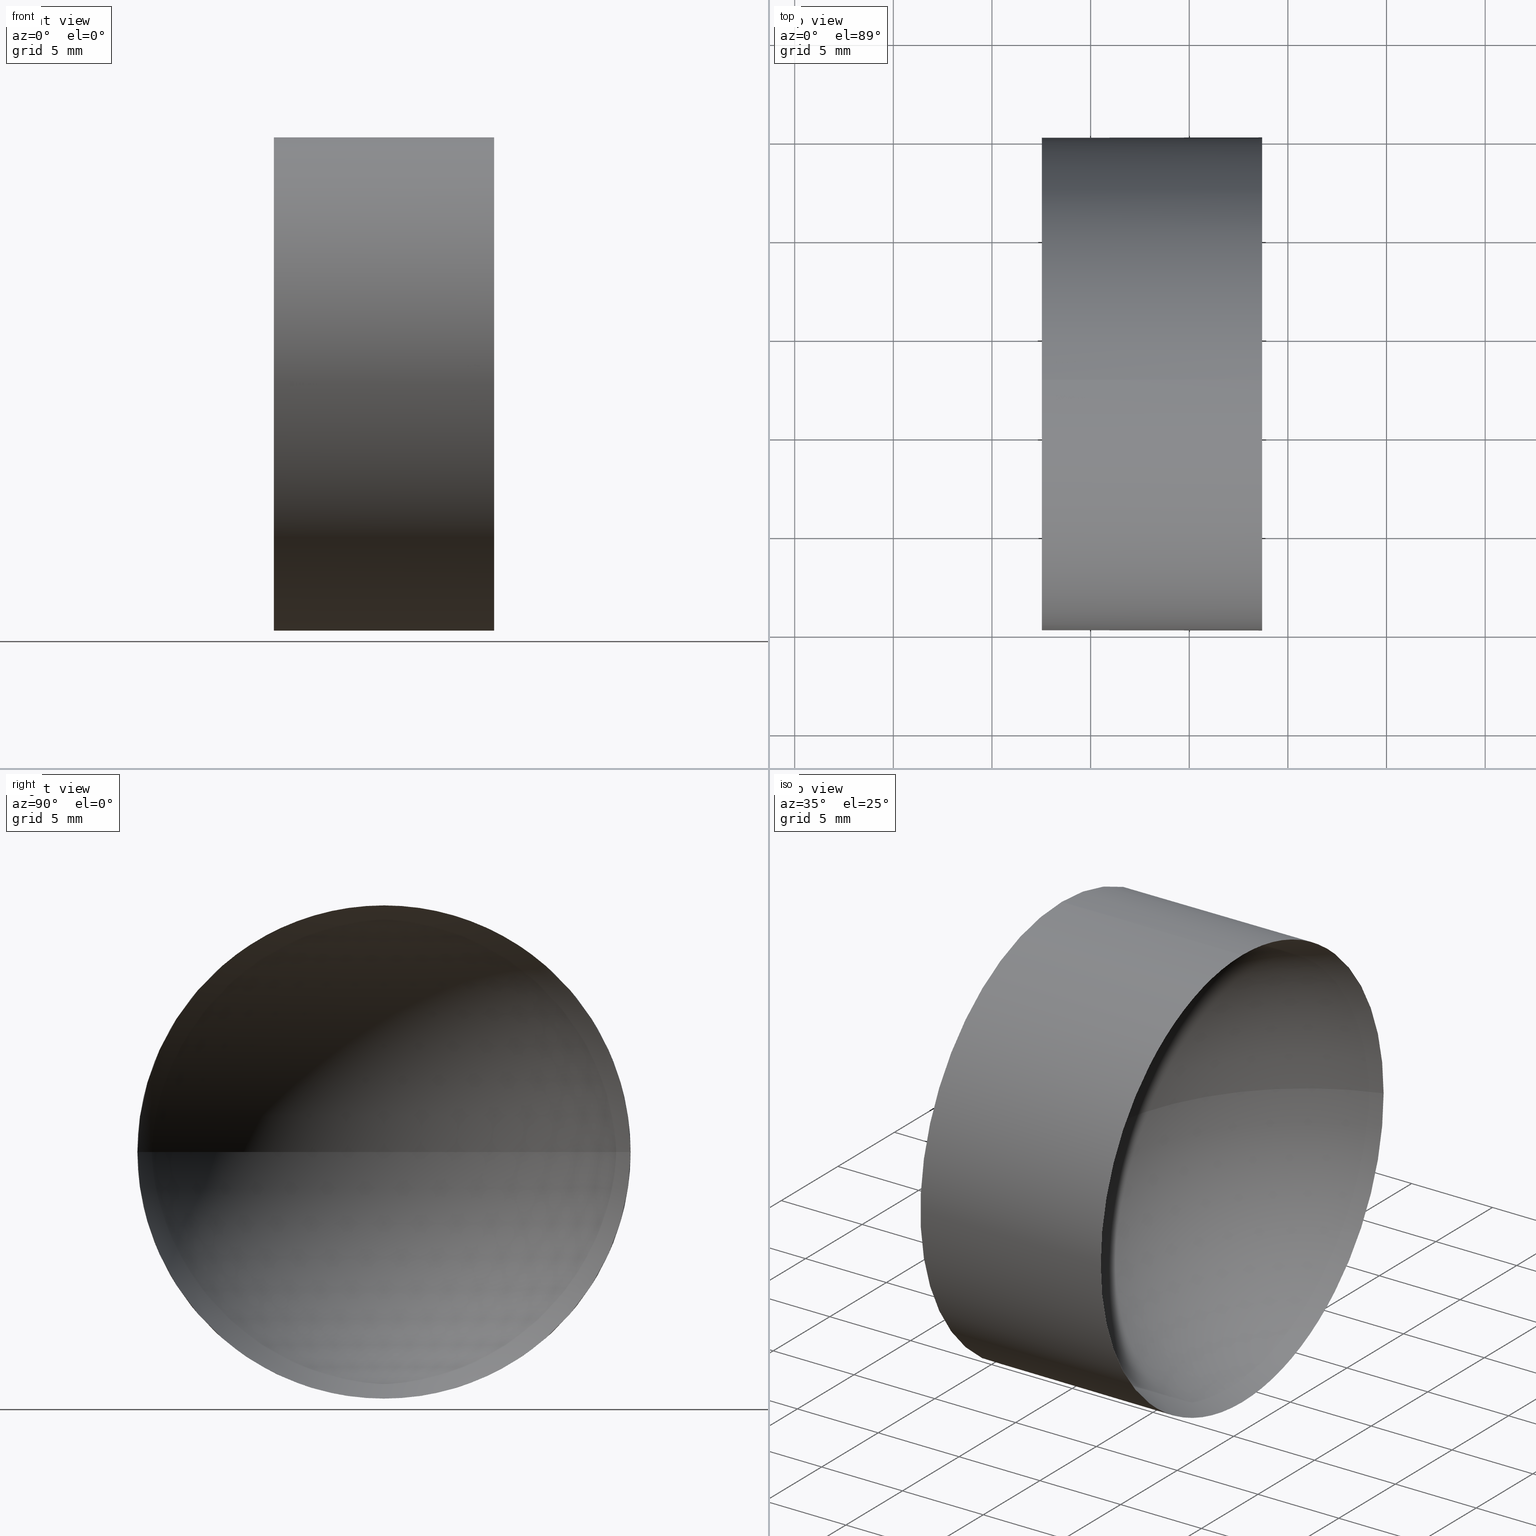
[diagram: canonical four-view strip — front | top / right | iso, engineering-drawing reading convention]
A machine part, canonical four-view strip (front | top / right | iso — engineering-drawing reading convention). The complete STEP part file that produces these views, byte-faithful:
ISO-10303-21;
HEADER;
FILE_DESCRIPTION (( 'STEP AP214' ),
    '1' );
FILE_NAME ('120029.STEP',
    '2019-06-17T02:26:49',
    ( '' ),
    ( '' ),
    'SwSTEP 2.0',
    'SolidWorks 2016',
    '' );
FILE_SCHEMA (( 'AUTOMOTIVE_DESIGN' ));
ENDSEC;

DATA;
#1 = AXIS2_PLACEMENT_3D ( 'NONE', #9, #139, #171 ) ;
#2 =( NAMED_UNIT ( * ) SI_UNIT ( $, .STERADIAN. ) SOLID_ANGLE_UNIT ( ) );
#3 = VERTEX_POINT ( 'NONE', #167 ) ;
#4 = FILL_AREA_STYLE ('',( #11 ) ) ;
#5 = SURFACE_SIDE_STYLE ('',( #184 ) ) ;
#6 =( LENGTH_UNIT ( ) NAMED_UNIT ( * ) SI_UNIT ( .MILLI., .METRE. ) );
#7 = PRODUCT ( '120029', '120029', '', ( #112 ) ) ;
#8 = FACE_OUTER_BOUND ( 'NONE', #126, .T. ) ;
#9 = CARTESIAN_POINT ( 'NONE',  ( 72.64126718353050200, 32.61076812922678400, 0.0000000000000000000 ) ) ;
#10 = ORIENTED_EDGE ( 'NONE', *, *, #56, .F. ) ;
#11 = FILL_AREA_STYLE_COLOUR ( '', #50 ) ;
#12 = DIRECTION ( 'NONE',  ( 0.0000000000000000000, 0.0000000000000000000, 1.000000000000000000 ) ) ;
#13 =( NAMED_UNIT ( * ) PLANE_ANGLE_UNIT ( ) SI_UNIT ( $, .RADIAN. ) );
#14 = PRESENTATION_LAYER_ASSIGNMENT (  '', '', ( #128 ) ) ;
#15 = DIRECTION ( 'NONE',  ( 0.0000000000000000000, 0.0000000000000000000, -1.000000000000000000 ) ) ;
#16 = ORIENTED_EDGE ( 'NONE', *, *, #44, .T. ) ;
#17 = CLOSED_SHELL ( 'NONE', ( #144, #102, #85, #105, #154 ) ) ;
#18 = DIRECTION ( 'NONE',  ( 0.0000000000000000000, -1.000000000000000000, 0.0000000000000000000 ) ) ;
#19 = FACE_OUTER_BOUND ( 'NONE', #63, .T. ) ;
#20 = UNCERTAINTY_MEASURE_WITH_UNIT (LENGTH_MEASURE( 1.000000000000000100E-005 ), #6, 'distance_accuracy_value', 'NONE');
#21 = ORIENTED_EDGE ( 'NONE', *, *, #46, .T. ) ;
#22 = FACE_OUTER_BOUND ( 'NONE', #170, .T. ) ;
#23 = EDGE_CURVE ( 'NONE', #28, #106, #100, .T. ) ;
#24 = UNCERTAINTY_MEASURE_WITH_UNIT (LENGTH_MEASURE( 1.000000000000000100E-005 ), #77, 'distance_accuracy_value', 'NONE');
#25 = ORIENTED_EDGE ( 'NONE', *, *, #49, .T. ) ;
#26 = ORIENTED_EDGE ( 'NONE', *, *, #153, .T. ) ;
#27 = CIRCLE ( 'NONE', #87, 12.49999999999999600 ) ;
#28 = VERTEX_POINT ( 'NONE', #65 ) ;
#29 = CARTESIAN_POINT ( 'NONE',  ( 57.53233705252611700, 32.61076812922678400, 12.49999999999999600 ) ) ;
#30 =( NAMED_UNIT ( * ) PLANE_ANGLE_UNIT ( ) SI_UNIT ( $, .RADIAN. ) );
#31 = CARTESIAN_POINT ( 'NONE',  ( 56.10091507999716500, 32.61076812922678400, 12.49999999999999600 ) ) ;
#32 = DIRECTION ( 'NONE',  ( 0.0000000000000000000, -1.000000000000000000, 0.0000000000000000000 ) ) ;
#33 = STYLED_ITEM ( 'NONE', ( #183 ), #182 ) ;
#34 = CIRCLE ( 'NONE', #79, 13.10893013100437400 ) ;
#35 = AXIS2_PLACEMENT_3D ( 'NONE', #133, #90, #18 ) ;
#36 = SPHERICAL_SURFACE ( 'NONE', #104, 13.10893013100437400 ) ;
#37 = EDGE_LOOP ( 'NONE', ( #145, #124, #10, #141 ) ) ;
#38 = DIRECTION ( 'NONE',  ( -1.000000000000000000, -0.0000000000000000000, -0.0000000000000000000 ) ) ;
#39 = FILL_AREA_STYLE ('',( #132 ) ) ;
#40 = CARTESIAN_POINT ( 'NONE',  ( 0.0000000000000000000, 0.0000000000000000000, 0.0000000000000000000 ) ) ;
#41 = DIRECTION ( 'NONE',  ( 0.0000000000000000000, -1.000000000000000000, -1.224646799147353200E-016 ) ) ;
#42 = DIRECTION ( 'NONE',  ( -1.000000000000000000, -0.0000000000000000000, -0.0000000000000000000 ) ) ;
#43 = PRESENTATION_STYLE_ASSIGNMENT (( #159 ) ) ;
#44 = EDGE_CURVE ( 'NONE', #3, #61, #27, .T. ) ;
#45 = CIRCLE ( 'NONE', #158, 12.49999999999999600 ) ;
#46 = EDGE_CURVE ( 'NONE', #84, #52, #169, .T. ) ;
#47 = CARTESIAN_POINT ( 'NONE',  ( 56.10091507999716500, 32.61076812922678400, -12.49999999999999600 ) ) ;
#48 = UNCERTAINTY_MEASURE_WITH_UNIT (LENGTH_MEASURE( 1.000000000000000100E-005 ), #175, 'distance_accuracy_value', 'NONE');
#49 = EDGE_CURVE ( 'NONE', #61, #52, #97, .T. ) ;
#50 = COLOUR_RGB ( '',1.000000000000000000, 1.000000000000000000, 1.000000000000000000 ) ;
#51 = CARTESIAN_POINT ( 'NONE',  ( 56.10091507999716500, 32.61076812922678400, 0.0000000000000000000 ) ) ;
#52 = VERTEX_POINT ( 'NONE', #62 ) ;
#53 = CARTESIAN_POINT ( 'NONE',  ( 72.64126718353050200, 32.61076812922678400, 0.0000000000000000000 ) ) ;
#54 = CYLINDRICAL_SURFACE ( 'NONE', #113, 12.49999999999999600 ) ;
#55 = SURFACE_SIDE_STYLE ('',( #165 ) ) ;
#56 = EDGE_CURVE ( 'NONE', #28, #127, #136, .T. ) ;
#57 = ORIENTED_EDGE ( 'NONE', *, *, #60, .T. ) ;
#58 = ORIENTED_EDGE ( 'NONE', *, *, #185, .F. ) ;
#59 =( NAMED_UNIT ( * ) SI_UNIT ( $, .STERADIAN. ) SOLID_ANGLE_UNIT ( ) );
#60 = EDGE_CURVE ( 'NONE', #52, #84, #92, .T. ) ;
#61 = VERTEX_POINT ( 'NONE', #142 ) ;
#62 = CARTESIAN_POINT ( 'NONE',  ( 57.53233705252611700, 32.61076812922678400, -12.49999999999999600 ) ) ;
#63 = EDGE_LOOP ( 'NONE', ( #166, #96, #74, #115, #80 ) ) ;
#64 = EDGE_CURVE ( 'NONE', #3, #106, #34, .T. ) ;
#65 = CARTESIAN_POINT ( 'NONE',  ( 68.69233705252611300, 20.11076812922678800, 0.0000000000000000000 ) ) ;
#66 = EDGE_CURVE ( 'NONE', #61, #28, #129, .T. ) ;
#67 = FACE_OUTER_BOUND ( 'NONE', #37, .T. ) ;
#68 = ORIENTED_EDGE ( 'NONE', *, *, #46, .F. ) ;
#69 = CARTESIAN_POINT ( 'NONE',  ( 57.53233705252611700, 32.61076812922678400, 0.0000000000000000000 ) ) ;
#70 = DIRECTION ( 'NONE',  ( 0.0000000000000000000, 0.0000000000000000000, 1.000000000000000000 ) ) ;
#71 = DIRECTION ( 'NONE',  ( -1.000000000000000000, -0.0000000000000000000, -0.0000000000000000000 ) ) ;
#72 = CARTESIAN_POINT ( 'NONE',  ( 68.69233705252611300, 32.61076812922678400, 0.0000000000000000000 ) ) ;
#73 = DIRECTION ( 'NONE',  ( 0.0000000000000000000, 0.0000000000000000000, 1.000000000000000000 ) ) ;
#74 = ORIENTED_EDGE ( 'NONE', *, *, #56, .T. ) ;
#75 = DIRECTION ( 'NONE',  ( 1.000000000000000000, 0.0000000000000000000, 0.0000000000000000000 ) ) ;
#76 = DIRECTION ( 'NONE',  ( -1.000000000000000000, -0.0000000000000000000, -0.0000000000000000000 ) ) ;
#77 =( LENGTH_UNIT ( ) NAMED_UNIT ( * ) SI_UNIT ( .MILLI., .METRE. ) );
#78 = DIRECTION ( 'NONE',  ( 1.000000000000000000, 0.0000000000000000000, 0.0000000000000000000 ) ) ;
#79 = AXIS2_PLACEMENT_3D ( 'NONE', #148, #164, #41 ) ;
#80 = ORIENTED_EDGE ( 'NONE', *, *, #60, .F. ) ;
#81 = PRODUCT_RELATED_PRODUCT_CATEGORY ( 'part', '', ( #7 ) ) ;
#82 =( GEOMETRIC_REPRESENTATION_CONTEXT ( 3 ) GLOBAL_UNCERTAINTY_ASSIGNED_CONTEXT ( ( #20 ) ) GLOBAL_UNIT_ASSIGNED_CONTEXT ( ( #6, #13, #59 ) ) REPRESENTATION_CONTEXT ( 'NONE', 'WORKASPACE' ) );
#83 = ORIENTED_EDGE ( 'NONE', *, *, #23, .F. ) ;
#84 = VERTEX_POINT ( 'NONE', #29 ) ;
#85 = ADVANCED_FACE ( 'NONE', ( #67 ), #168, .F. ) ;
#86 = DIRECTION ( 'NONE',  ( 0.0000000000000000000, 0.0000000000000000000, 1.000000000000000000 ) ) ;
#87 = AXIS2_PLACEMENT_3D ( 'NONE', #131, #38, #157 ) ;
#88 = AXIS2_PLACEMENT_3D ( 'NONE', #123, #162, #160 ) ;
#89 = APPLICATION_PROTOCOL_DEFINITION ( 'draft international standard', 'automotive_design', 1998, #147 ) ;
#90 = DIRECTION ( 'NONE',  ( 0.0000000000000000000, 0.0000000000000000000, 1.000000000000000000 ) ) ;
#91 = DIRECTION ( 'NONE',  ( -1.000000000000000000, -0.0000000000000000000, -0.0000000000000000000 ) ) ;
#92 = CIRCLE ( 'NONE', #140, 12.49999999999999600 ) ;
#93 = MECHANICAL_DESIGN_GEOMETRIC_PRESENTATION_REPRESENTATION (  '', ( #128 ), #151 ) ;
#94 = PRODUCT_DEFINITION_CONTEXT ( 'detailed design', #150, 'design' ) ;
#95 = DIRECTION ( 'NONE',  ( 0.0000000000000000000, 0.0000000000000000000, 1.000000000000000000 ) ) ;
#96 = ORIENTED_EDGE ( 'NONE', *, *, #66, .T. ) ;
#97 = LINE ( 'NONE', #47, #117 ) ;
#98 = PRODUCT_DEFINITION ( 'δ֪', '', #101, #94 ) ;
#99 = AXIS2_PLACEMENT_3D ( 'NONE', #149, #107, #70 ) ;
#100 = CIRCLE ( 'NONE', #1, 13.10893013100437800 ) ;
#101 = PRODUCT_DEFINITION_FORMATION_WITH_SPECIFIED_SOURCE ( '�κ�', '', #7, .NOT_KNOWN. ) ;
#102 = ADVANCED_FACE ( 'NONE', ( #114 ), #36, .F. ) ;
#103 = DIRECTION ( 'NONE',  ( -1.000000000000000000, -0.0000000000000000000, -0.0000000000000000000 ) ) ;
#104 = AXIS2_PLACEMENT_3D ( 'NONE', #53, #146, #32 ) ;
#105 = ADVANCED_FACE ( 'NONE', ( #19 ), #186, .T. ) ;
#106 = VERTEX_POINT ( 'NONE', #122 ) ;
#107 = DIRECTION ( 'NONE',  ( -1.000000000000000000, -0.0000000000000000000, -0.0000000000000000000 ) ) ;
#108 = CARTESIAN_POINT ( 'NONE',  ( 68.69233705252611300, 32.61076812922678400, 0.0000000000000000000 ) ) ;
#109 = PRODUCT_DEFINITION_SHAPE ( 'NONE', 'NONE',  #98 ) ;
#110 = SURFACE_STYLE_USAGE ( .BOTH. , #55 ) ;
#111 =( NAMED_UNIT ( * ) SI_UNIT ( $, .STERADIAN. ) SOLID_ANGLE_UNIT ( ) );
#112 = PRODUCT_CONTEXT ( 'NONE', #147, 'mechanical' ) ;
#113 = AXIS2_PLACEMENT_3D ( 'NONE', #51, #91, #73 ) ;
#114 = FACE_OUTER_BOUND ( 'NONE', #173, .T. ) ;
#115 = ORIENTED_EDGE ( 'NONE', *, *, #185, .T. ) ;
#116 = SHAPE_DEFINITION_REPRESENTATION ( #109, #182 ) ;
#117 = VECTOR ( 'NONE', #143, 1000.000000000000000 ) ;
#118 = PRESENTATION_LAYER_ASSIGNMENT (  '', '', ( #33 ) ) ;
#119 = LINE ( 'NONE', #31, #179 ) ;
#120 = CARTESIAN_POINT ( 'NONE',  ( 57.53233705252611700, 32.61076812922678400, 0.0000000000000000000 ) ) ;
#121 =( GEOMETRIC_REPRESENTATION_CONTEXT ( 3 ) GLOBAL_UNCERTAINTY_ASSIGNED_CONTEXT ( ( #24 ) ) GLOBAL_UNIT_ASSIGNED_CONTEXT ( ( #77, #135, #2 ) ) REPRESENTATION_CONTEXT ( 'NONE', 'WORKASPACE' ) );
#122 = CARTESIAN_POINT ( 'NONE',  ( 59.53233705252612400, 32.61076812922678400, 0.0000000000000000000 ) ) ;
#123 = CARTESIAN_POINT ( 'NONE',  ( 56.10091507999716500, 32.61076812922678400, 0.0000000000000000000 ) ) ;
#124 = ORIENTED_EDGE ( 'NONE', *, *, #153, .F. ) ;
#125 = APPLICATION_PROTOCOL_DEFINITION ( 'draft international standard', 'automotive_design', 1998, #150 ) ;
#126 = EDGE_LOOP ( 'NONE', ( #16, #25, #68, #58, #26 ) ) ;
#127 = VERTEX_POINT ( 'NONE', #178 ) ;
#128 = STYLED_ITEM ( 'NONE', ( #43 ), #134 ) ;
#129 = CIRCLE ( 'NONE', #99, 12.49999999999999600 ) ;
#130 = AXIS2_PLACEMENT_3D ( 'NONE', #69, #103, #86 ) ;
#131 = CARTESIAN_POINT ( 'NONE',  ( 68.69233705252611300, 32.61076812922678400, 0.0000000000000000000 ) ) ;
#132 = FILL_AREA_STYLE_COLOUR ( '', #172 ) ;
#133 = CARTESIAN_POINT ( 'NONE',  ( 72.64126718353050200, 32.61076812922678400, 0.0000000000000000000 ) ) ;
#134 = MANIFOLD_SOLID_BREP ( '��ת1', #17 ) ;
#135 =( NAMED_UNIT ( * ) PLANE_ANGLE_UNIT ( ) SI_UNIT ( $, .RADIAN. ) );
#136 = CIRCLE ( 'NONE', #156, 12.49999999999999600 ) ;
#137 = ORIENTED_EDGE ( 'NONE', *, *, #66, .F. ) ;
#138 = ORIENTED_EDGE ( 'NONE', *, *, #44, .F. ) ;
#139 = DIRECTION ( 'NONE',  ( 0.0000000000000000000, 0.0000000000000000000, -1.000000000000000000 ) ) ;
#140 = AXIS2_PLACEMENT_3D ( 'NONE', #163, #76, #180 ) ;
#141 = ORIENTED_EDGE ( 'NONE', *, *, #23, .T. ) ;
#142 = CARTESIAN_POINT ( 'NONE',  ( 68.69233705252611300, 32.61076812922678400, -12.49999999999999600 ) ) ;
#143 = DIRECTION ( 'NONE',  ( -1.000000000000000000, -0.0000000000000000000, -0.0000000000000000000 ) ) ;
#144 = ADVANCED_FACE ( 'NONE', ( #8 ), #54, .T. ) ;
#145 = ORIENTED_EDGE ( 'NONE', *, *, #64, .F. ) ;
#146 = DIRECTION ( 'NONE',  ( 0.0000000000000000000, 0.0000000000000000000, 1.000000000000000000 ) ) ;
#147 = APPLICATION_CONTEXT ( 'automotive_design' ) ;
#148 = CARTESIAN_POINT ( 'NONE',  ( 72.64126718353050200, 32.61076812922678400, 0.0000000000000000000 ) ) ;
#149 = CARTESIAN_POINT ( 'NONE',  ( 68.69233705252611300, 32.61076812922678400, 0.0000000000000000000 ) ) ;
#150 = APPLICATION_CONTEXT ( 'automotive_design' ) ;
#151 =( GEOMETRIC_REPRESENTATION_CONTEXT ( 3 ) GLOBAL_UNCERTAINTY_ASSIGNED_CONTEXT ( ( #48 ) ) GLOBAL_UNIT_ASSIGNED_CONTEXT ( ( #175, #30, #111 ) ) REPRESENTATION_CONTEXT ( 'NONE', 'WORKASPACE' ) );
#152 = MECHANICAL_DESIGN_GEOMETRIC_PRESENTATION_REPRESENTATION (  '', ( #33 ), #82 ) ;
#153 = EDGE_CURVE ( 'NONE', #127, #3, #45, .T. ) ;
#154 = ADVANCED_FACE ( 'NONE', ( #22 ), #176, .F. ) ;
#155 = AXIS2_PLACEMENT_3D ( 'NONE', #40, #95, #78 ) ;
#156 = AXIS2_PLACEMENT_3D ( 'NONE', #72, #42, #12 ) ;
#157 = DIRECTION ( 'NONE',  ( 0.0000000000000000000, 0.0000000000000000000, 1.000000000000000000 ) ) ;
#158 = AXIS2_PLACEMENT_3D ( 'NONE', #108, #71, #181 ) ;
#159 = SURFACE_STYLE_USAGE ( .BOTH. , #5 ) ;
#160 = DIRECTION ( 'NONE',  ( 0.0000000000000000000, 0.0000000000000000000, 1.000000000000000000 ) ) ;
#161 = DIRECTION ( 'NONE',  ( -1.000000000000000000, -0.0000000000000000000, -0.0000000000000000000 ) ) ;
#162 = DIRECTION ( 'NONE',  ( -1.000000000000000000, -0.0000000000000000000, -0.0000000000000000000 ) ) ;
#163 = CARTESIAN_POINT ( 'NONE',  ( 57.53233705252611700, 32.61076812922678400, 0.0000000000000000000 ) ) ;
#164 = DIRECTION ( 'NONE',  ( 0.0000000000000000000, -1.224646799147353200E-016, 1.000000000000000000 ) ) ;
#165 = SURFACE_STYLE_FILL_AREA ( #4 ) ;
#166 = ORIENTED_EDGE ( 'NONE', *, *, #49, .F. ) ;
#167 = CARTESIAN_POINT ( 'NONE',  ( 68.69233705252611300, 45.11076812922679100, 1.530808498934191500E-015 ) ) ;
#168 = SPHERICAL_SURFACE ( 'NONE', #35, 13.10893013100437400 ) ;
#169 = CIRCLE ( 'NONE', #130, 12.49999999999999600 ) ;
#170 = EDGE_LOOP ( 'NONE', ( #21, #57 ) ) ;
#171 = DIRECTION ( 'NONE',  ( -1.000000000000000000, 0.0000000000000000000, 0.0000000000000000000 ) ) ;
#172 = COLOUR_RGB ( '',1.000000000000000000, 1.000000000000000000, 1.000000000000000000 ) ;
#173 = EDGE_LOOP ( 'NONE', ( #138, #174, #83, #137 ) ) ;
#174 = ORIENTED_EDGE ( 'NONE', *, *, #64, .T. ) ;
#175 =( LENGTH_UNIT ( ) NAMED_UNIT ( * ) SI_UNIT ( .MILLI., .METRE. ) );
#176 = PLANE ( 'NONE',  #177 ) ;
#177 = AXIS2_PLACEMENT_3D ( 'NONE', #120, #75, #15 ) ;
#178 = CARTESIAN_POINT ( 'NONE',  ( 68.69233705252611300, 32.61076812922678400, 12.49999999999999600 ) ) ;
#179 = VECTOR ( 'NONE', #161, 1000.000000000000000 ) ;
#180 = DIRECTION ( 'NONE',  ( 0.0000000000000000000, 0.0000000000000000000, 1.000000000000000000 ) ) ;
#181 = DIRECTION ( 'NONE',  ( 0.0000000000000000000, 0.0000000000000000000, 1.000000000000000000 ) ) ;
#182 = ADVANCED_BREP_SHAPE_REPRESENTATION ( '120029', ( #134, #155 ), #121 ) ;
#183 = PRESENTATION_STYLE_ASSIGNMENT (( #110 ) ) ;
#184 = SURFACE_STYLE_FILL_AREA ( #39 ) ;
#185 = EDGE_CURVE ( 'NONE', #127, #84, #119, .T. ) ;
#186 = CYLINDRICAL_SURFACE ( 'NONE', #88, 12.49999999999999600 ) ;
ENDSEC;
END-ISO-10303-21;
